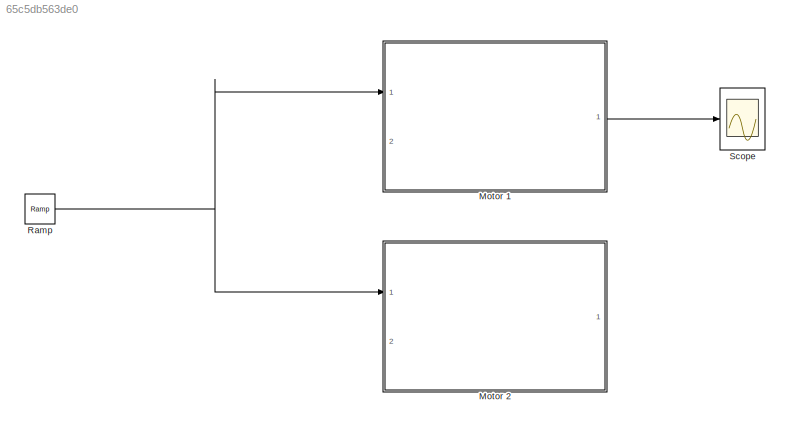
MODEL slx_65c5db563de0
KIND model
CONFIG AbsTol = auto
CONFIG EnableMultiTasking = off
CONFIG FixedStep = auto
CONFIG MaxStep = auto
CONFIG MinStep = auto
CONFIG RelTol = 1e-3
CONFIG SampleTimeConstraint = Unconstrained
CONFIG SolverName = VariableStepAuto
CONFIG StartTime = 0.0
CONFIG StopTime = 10
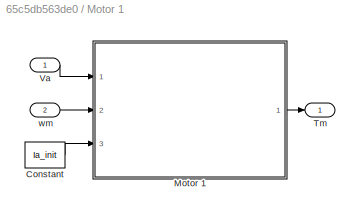
BLOCK [SubSystem] Motor 1
  Ports = [2, 1]
  RequestExecContextInheritance = off
BLOCK [Constant] Motor 1/Constant
  Value = Ia_init
BLOCK [ModelReference] Motor 1/Motor 1
  CopyOfModelProtected = on
  ModelNameDialog = Motor_1
  ModelReferenceVersion = 1.18
  Ports = [3, 1]
BLOCK [Outport] Motor 1/Tm
BLOCK [Inport] Motor 1/Va
BLOCK [Inport] Motor 1/wm
  Port = 2
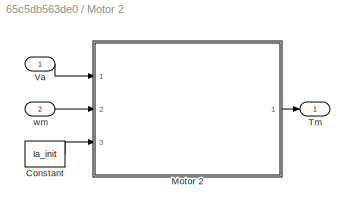
BLOCK [SubSystem] Motor 2
  Ports = [2, 1]
  RequestExecContextInheritance = off
BLOCK [Constant] Motor 2/Constant
  Value = Ia_init
BLOCK [ModelReference] Motor 2/Motor 2
  CopyOfModelProtected = on
  ModelNameDialog = Motor_2
  ModelReferenceVersion = 1.19
  Ports = [3, 1]
BLOCK [Outport] Motor 2/Tm
BLOCK [Inport] Motor 2/Va
BLOCK [Inport] Motor 2/wm
  Port = 2
BLOCK [Reference] Ramp  REF=simulink/Sources/Ramp
  Ports = [0, 1]
  SourceBlock = simulink/Sources/Ramp
  SourceProductBaseCode = SL
  SourceType = Ramp
BLOCK [Scope] Scope
  Floating = off
  NumInputPorts = 1
  Ports = [1]
  ScopeSpecificationString = Simulink.scopes.TimeScopeBlockCfg('CurrentConfiguration', extmgr.ConfigurationSet(extmgr.Configuration('Core','General UI',true),extmgr.Configuration('Core','Source UI',true),extmgr.Configuration('Sources','WiredSimulink',true),extmgr.Configuration('Visuals','Time Domain',true,'SerializedDisplays',{struct('MinYLimReal','-0.14833','MaxYLimReal','1.33501','YLabelReal','','MinYLimMag','0.00000','MaxY...<+1383ch>
LINE Motor 1/Constant:1 -> Motor 1/Motor 1:3
LINE Motor 1/Motor 1:1 -> Motor 1/Tm:1
LINE Motor 1/Va:1 -> Motor 1/Motor 1:1
LINE Motor 1/wm:1 -> Motor 1/Motor 1:2
LINE Motor 1:1 -> Scope:1
LINE Motor 2/Constant:1 -> Motor 2/Motor 2:3
LINE Motor 2/Motor 2:1 -> Motor 2/Tm:1
LINE Motor 2/Va:1 -> Motor 2/Motor 2:1
LINE Motor 2/wm:1 -> Motor 2/Motor 2:2
NET Ramp:1 -> Motor 1:1, Motor 2:1
note: NET lines group one-source signal fan-out (src -> all destinations, sorted); 1:1 wires keep LINE
